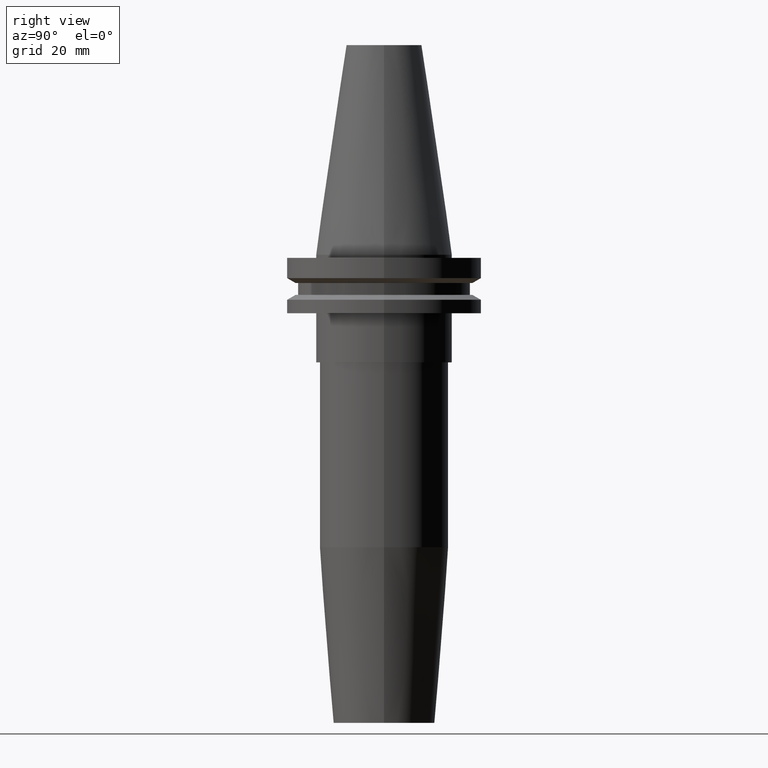
[diagram: clean part render]
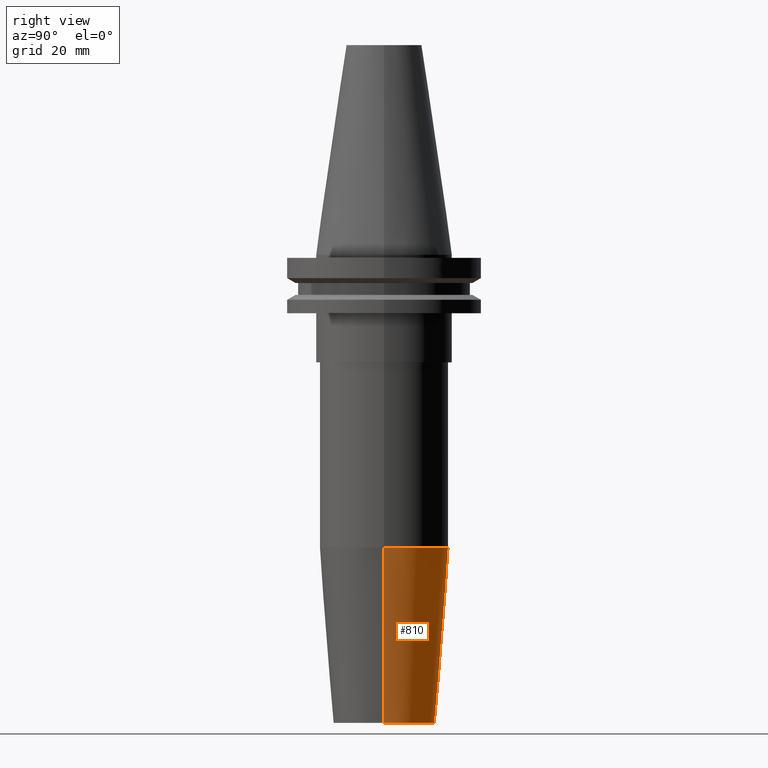
[diagram: same view with one face highlighted and labeled with its STEP entity id]
A machine part, right view. The second image highlights one B-rep face of the part: STEP entity #810.
In plain terms, the highlighted conical surface has half-angle 4.5 deg.
Its self-contained STEP definition (entity closure, byte-faithful):
#15 = EDGE_CURVE ( 'NONE', #175, #501, #125, .T. ) ;
#48 = DIRECTION ( 'NONE',  ( -0.000000000000000000, -0.000000000000000000, 1.000000000000000000 ) ) ;
#54 = DIRECTION ( 'NONE',  ( -0.07845909572783671404, 9.608468044709101226E-18, 0.9969173337331286300 ) ) ;
#83 = AXIS2_PLACEMENT_3D ( 'NONE', #485, #778, #654 ) ;
#86 = VERTEX_POINT ( 'NONE', #87 ) ;
#87 = CARTESIAN_POINT ( 'NONE',  ( -21.00000000000000000, 2.571758278209441661E-15, -95.22207868720779800 ) ) ;
#97 = FACE_OUTER_BOUND ( 'NONE', #671, .T. ) ;
#100 = AXIS2_PLACEMENT_3D ( 'NONE', #715, #48, #507 ) ;
#114 = LINE ( 'NONE', #787, #679 ) ;
#125 = CIRCLE ( 'NONE', #83, 16.50000000000000000 ) ;
#161 = CARTESIAN_POINT ( 'NONE',  ( 16.50000000000000000, 0.000000000000000000, -152.4000000000000057 ) ) ;
#175 = VERTEX_POINT ( 'NONE', #161 ) ;
#187 = DIRECTION ( 'NONE',  ( 0.07845909572783671404, 0.000000000000000000, 0.9969173337331286300 ) ) ;
#253 = CARTESIAN_POINT ( 'NONE',  ( 0.000000000000000000, 0.000000000000000000, -152.4000000000000057 ) ) ;
#256 = AXIS2_PLACEMENT_3D ( 'NONE', #253, #533, #591 ) ;
#287 = ORIENTED_EDGE ( 'NONE', *, *, #15, .T. ) ;
#303 = EDGE_CURVE ( 'NONE', #585, #86, #478, .T. ) ;
#333 = CARTESIAN_POINT ( 'NONE',  ( -16.50000000000000000, 2.020667218593133100E-15, -152.4000000000000057 ) ) ;
#390 = EDGE_CURVE ( 'NONE', #175, #585, #114, .T. ) ;
#430 = EDGE_CURVE ( 'NONE', #501, #86, #656, .T. ) ;
#451 = VECTOR ( 'NONE', #54, 1000.000000000000000 ) ;
#478 = CIRCLE ( 'NONE', #100, 21.00000000000000000 ) ;
#485 = CARTESIAN_POINT ( 'NONE',  ( 0.000000000000000000, 0.000000000000000000, -152.4000000000000057 ) ) ;
#501 = VERTEX_POINT ( 'NONE', #855 ) ;
#507 = DIRECTION ( 'NONE',  ( 1.000000000000000000, 0.000000000000000000, 0.000000000000000000 ) ) ;
#533 = DIRECTION ( 'NONE',  ( -0.000000000000000000, -0.000000000000000000, 1.000000000000000000 ) ) ;
#566 = ORIENTED_EDGE ( 'NONE', *, *, #303, .F. ) ;
#581 = ORIENTED_EDGE ( 'NONE', *, *, #390, .F. ) ;
#585 = VERTEX_POINT ( 'NONE', #670 ) ;
#591 = DIRECTION ( 'NONE',  ( 1.000000000000000000, 0.000000000000000000, 0.000000000000000000 ) ) ;
#654 = DIRECTION ( 'NONE',  ( 1.000000000000000000, 0.000000000000000000, 0.000000000000000000 ) ) ;
#656 = LINE ( 'NONE', #333, #451 ) ;
#670 = CARTESIAN_POINT ( 'NONE',  ( 21.00000000000000000, 0.000000000000000000, -95.22207868720779800 ) ) ;
#671 = EDGE_LOOP ( 'NONE', ( #287, #747, #566, #581 ) ) ;
#679 = VECTOR ( 'NONE', #187, 1000.000000000000000 ) ;
#715 = CARTESIAN_POINT ( 'NONE',  ( 0.000000000000000000, 0.000000000000000000, -95.22207868720779800 ) ) ;
#747 = ORIENTED_EDGE ( 'NONE', *, *, #430, .T. ) ;
#778 = DIRECTION ( 'NONE',  ( -0.000000000000000000, -0.000000000000000000, 1.000000000000000000 ) ) ;
#782 = CONICAL_SURFACE ( 'NONE', #256, 16.50000000000000000, 0.07853981633973657062 ) ;
#787 = CARTESIAN_POINT ( 'NONE',  ( 16.50000000000000000, 0.000000000000000000, -152.4000000000000057 ) ) ;
#810 = ADVANCED_FACE ( 'NONE', ( #97 ), #782, .T. ) ;
#855 = CARTESIAN_POINT ( 'NONE',  ( -16.50000000000000000, 2.296212748401287578E-15, -152.4000000000000057 ) ) ;